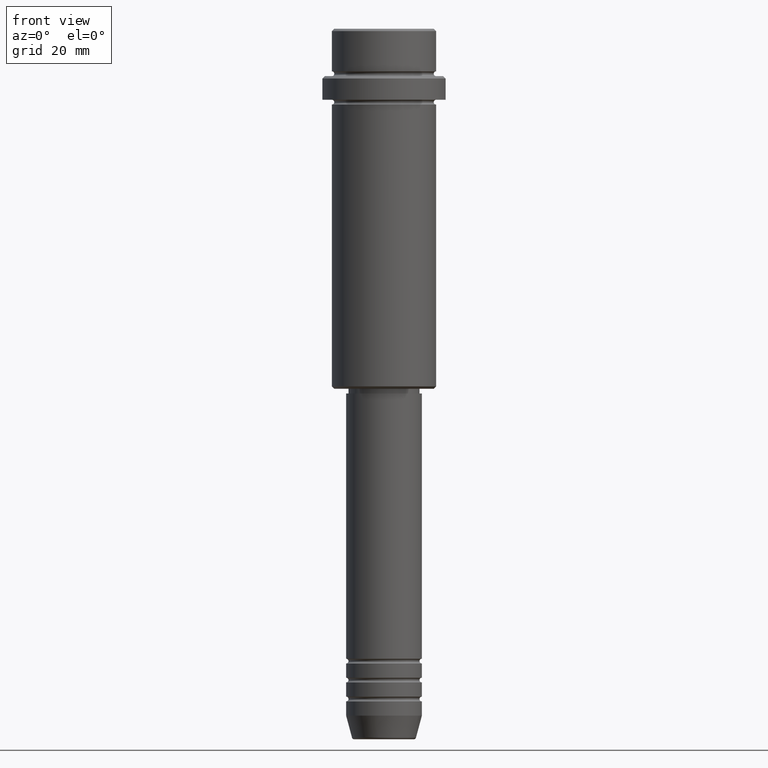
[diagram: clean part render]
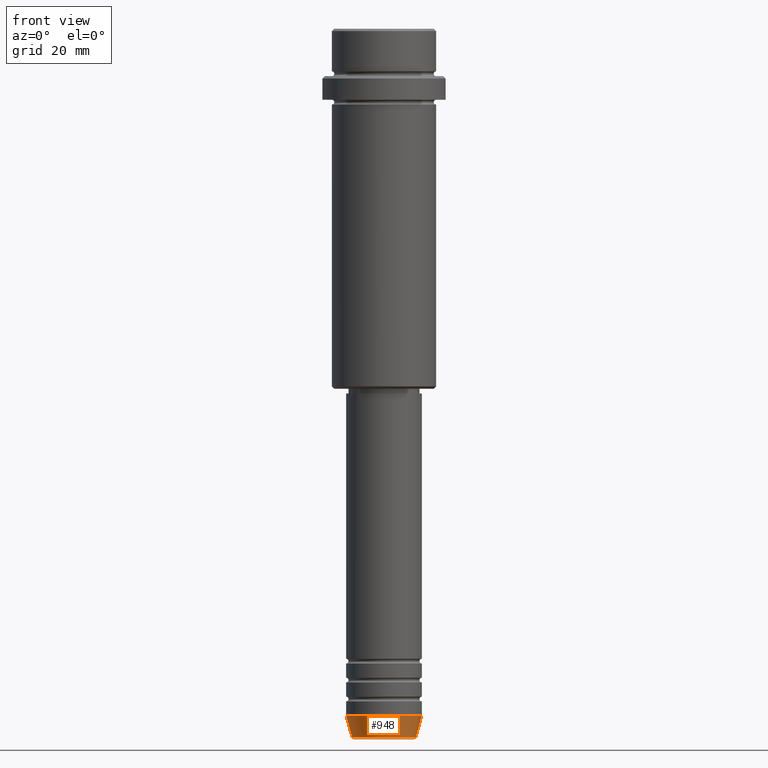
[diagram: same view with one face highlighted and labeled with its STEP entity id]
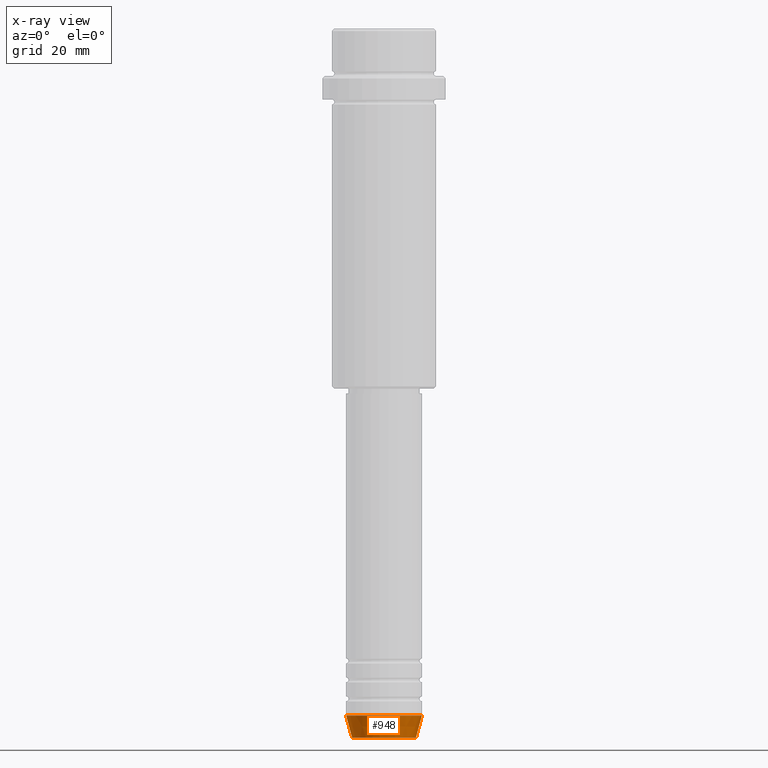
[diagram: x-ray of the same camera — body ghosted, the highlighted face saturated]
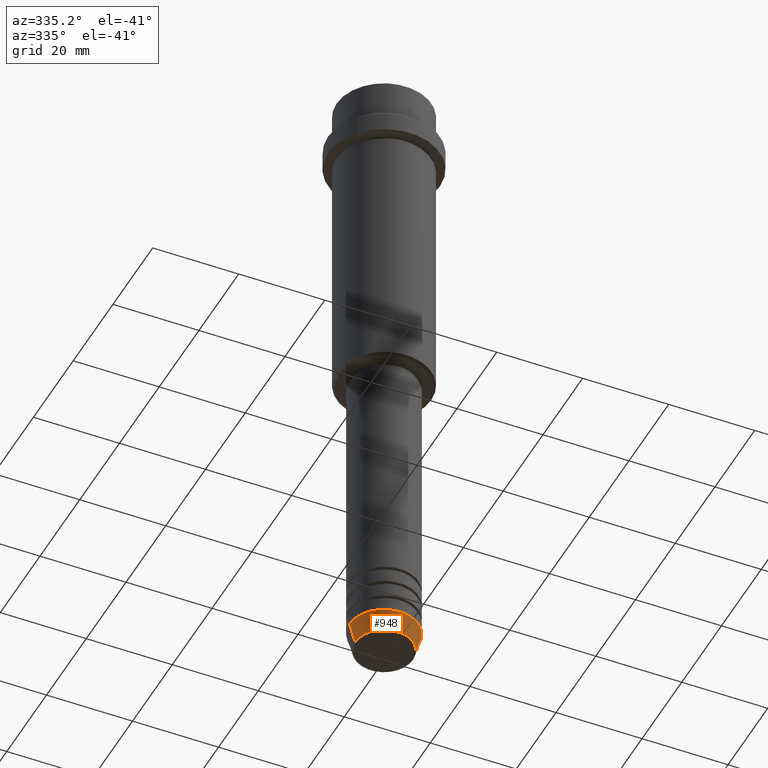
[diagram: same view with one face highlighted and labeled with its STEP entity id]
A machine part, front view. The second image highlights one B-rep face of the part: STEP entity #948.
The next image is the same camera in x-ray: the body ghosted, the highlighted face saturated — about 0% of this face is hidden behind the body in this view.
A second angle (auxiliary view) of the same face is appended — the face is thin or edge-on in the first view.
In plain terms, the highlighted conical surface has half-angle 15 deg.
Its self-contained STEP definition (entity closure, byte-faithful):
#8 = CARTESIAN_POINT ( 'NONE',  ( 0.000000000000000000, 0.000000000000000000, -149.6294095225512706 ) ) ;
#19 = VERTEX_POINT ( 'NONE', #792 ) ;
#64 = DIRECTION ( 'NONE',  ( 1.000000000000000000, 0.000000000000000000, 0.000000000000000000 ) ) ;
#93 = AXIS2_PLACEMENT_3D ( 'NONE', #493, #299, #64 ) ;
#125 = CARTESIAN_POINT ( 'NONE',  ( 8.000000000000000000, 0.000000000000000000, -145.0000000000000284 ) ) ;
#296 = ORIENTED_EDGE ( 'NONE', *, *, #531, .F. ) ;
#299 = DIRECTION ( 'NONE',  ( -0.000000000000000000, -0.000000000000000000, 1.000000000000000000 ) ) ;
#357 = CARTESIAN_POINT ( 'NONE',  ( -6.759553456999433330, 9.037619948979304241E-16, -149.6294095225512706 ) ) ;
#382 = CIRCLE ( 'NONE', #903, 6.759553456999433330 ) ;
#384 = CONICAL_SURFACE ( 'NONE', #93, 8.000000000000000000, 0.2617993877991500740 ) ;
#410 = EDGE_CURVE ( 'NONE', #516, #627, #382, .T. ) ;
#411 = FACE_OUTER_BOUND ( 'NONE', #1108, .T. ) ;
#440 = DIRECTION ( 'NONE',  ( -0.000000000000000000, -0.000000000000000000, 1.000000000000000000 ) ) ;
#493 = CARTESIAN_POINT ( 'NONE',  ( 0.000000000000000000, 0.000000000000000000, -145.0000000000000284 ) ) ;
#516 = VERTEX_POINT ( 'NONE', #357 ) ;
#531 = EDGE_CURVE ( 'NONE', #880, #19, #1396, .T. ) ;
#565 = EDGE_CURVE ( 'NONE', #516, #880, #686, .T. ) ;
#580 = CARTESIAN_POINT ( 'NONE',  ( 0.000000000000000000, 0.000000000000000000, -145.0000000000000284 ) ) ;
#627 = VERTEX_POINT ( 'NONE', #861 ) ;
#645 = VECTOR ( 'NONE', #1225, 1000.000000000000000 ) ;
#672 = EDGE_CURVE ( 'NONE', #627, #19, #1091, .T. ) ;
#678 = CARTESIAN_POINT ( 'NONE',  ( -8.000000000000000000, 9.797174393178825657E-16, -145.0000000000000284 ) ) ;
#686 = LINE ( 'NONE', #1110, #853 ) ;
#699 = DIRECTION ( 'NONE',  ( 1.000000000000000000, 0.000000000000000000, 0.000000000000000000 ) ) ;
#792 = CARTESIAN_POINT ( 'NONE',  ( 8.000000000000000000, 0.000000000000000000, -145.0000000000000284 ) ) ;
#853 = VECTOR ( 'NONE', #1013, 1000.000000000000000 ) ;
#861 = CARTESIAN_POINT ( 'NONE',  ( 6.759553456999433330, 0.000000000000000000, -149.6294095225512706 ) ) ;
#880 = VERTEX_POINT ( 'NONE', #678 ) ;
#903 = AXIS2_PLACEMENT_3D ( 'NONE', #8, #440, #1094 ) ;
#915 = ORIENTED_EDGE ( 'NONE', *, *, #410, .T. ) ;
#948 = ADVANCED_FACE ( 'NONE', ( #411 ), #384, .T. ) ;
#1004 = DIRECTION ( 'NONE',  ( -0.000000000000000000, -0.000000000000000000, 1.000000000000000000 ) ) ;
#1013 = DIRECTION ( 'NONE',  ( -0.2588190451025213501, 3.169619151431772337E-17, 0.9659258262890680902 ) ) ;
#1084 = ORIENTED_EDGE ( 'NONE', *, *, #565, .F. ) ;
#1091 = LINE ( 'NONE', #125, #645 ) ;
#1094 = DIRECTION ( 'NONE',  ( 1.000000000000000000, 0.000000000000000000, 0.000000000000000000 ) ) ;
#1108 = EDGE_LOOP ( 'NONE', ( #1084, #915, #1272, #296 ) ) ;
#1110 = CARTESIAN_POINT ( 'NONE',  ( -8.000000000000000000, 9.797174393178825657E-16, -145.0000000000000284 ) ) ;
#1161 = AXIS2_PLACEMENT_3D ( 'NONE', #580, #1004, #699 ) ;
#1225 = DIRECTION ( 'NONE',  ( 0.2588190451025213501, 0.000000000000000000, 0.9659258262890680902 ) ) ;
#1272 = ORIENTED_EDGE ( 'NONE', *, *, #672, .T. ) ;
#1396 = CIRCLE ( 'NONE', #1161, 8.000000000000000000 ) ;